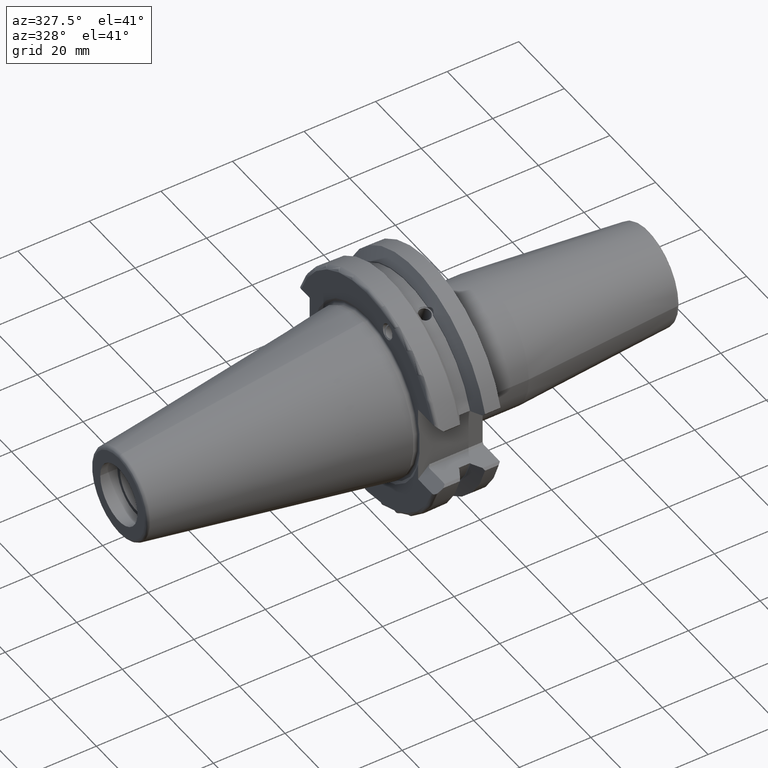
[diagram: clean part render]
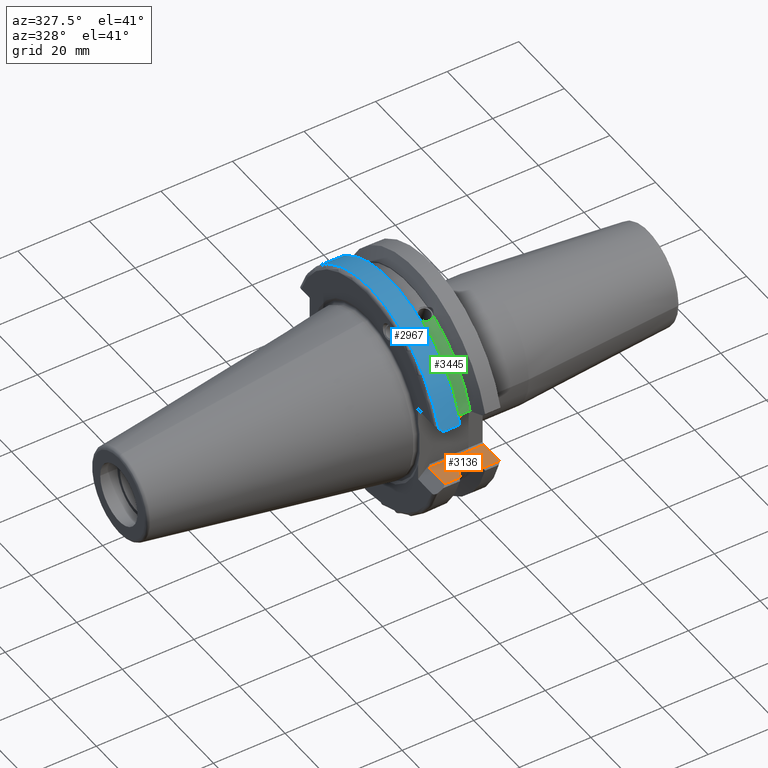
[diagram: same view with three faces highlighted in distinct colors, each labeled with its STEP entity id]
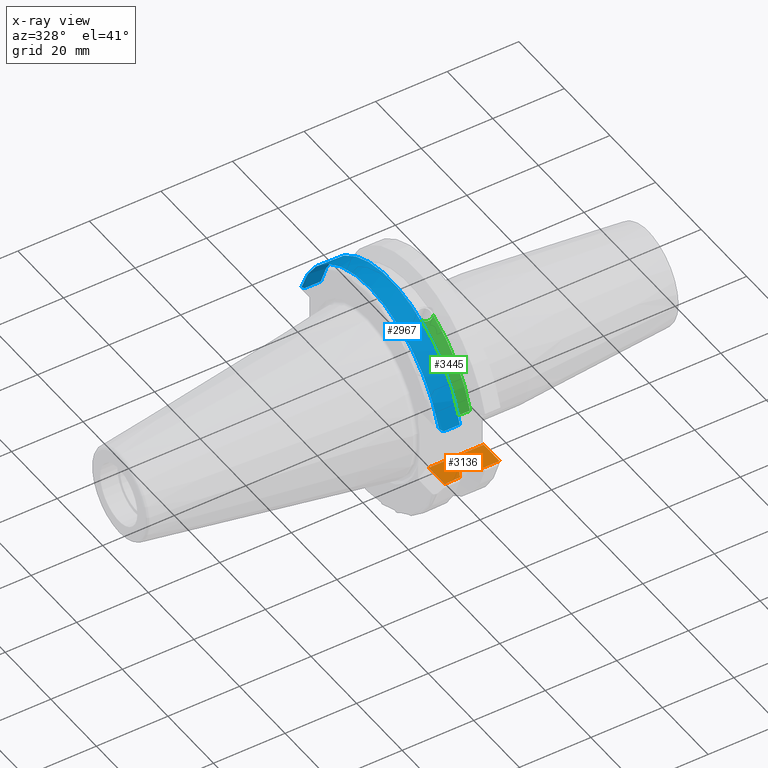
[diagram: x-ray of the same camera — body ghosted, the three highlighted faces saturated]
A machine part, auxiliary view with three faces highlighted in distinct colors.
The next image is the same camera in x-ray (body ghosted, the three faces saturated) — at least one of them is partly hidden behind the body in this view.
Their STEP definitions:

[orange] entity #3136 — the highlighted planar face has unit normal (0, 0, -1).
#281=DIRECTION('',(0.E0,1.E0,0.E0));
#282=VECTOR('',#281,6.917434933718E0);
#283=CARTESIAN_POINT('',(1.905E1,-3.001743493372E1,-8.19E0));
#284=LINE('',#283,#282);
#404=CARTESIAN_POINT('',(1.433535706711E1,-3.001743493372E1,-8.19E0));
#405=CARTESIAN_POINT('',(1.415629793946E1,-2.969595884884E1,-8.19E0));
#406=CARTESIAN_POINT('',(1.380177420519E1,-2.905874460031E1,-8.19E0));
#407=CARTESIAN_POINT('',(1.328084591441E1,-2.812019021653E1,-8.19E0));
#408=CARTESIAN_POINT('',(1.294074254485E1,-2.750584123433E1,-8.19E0));
#409=CARTESIAN_POINT('',(1.277249942683E1,-2.720151372390E1,-8.19E0));
#415=CARTESIAN_POINT('',(1.433535706711E1,-3.001743493372E1,-8.19E0));
#509=DIRECTION('',(0.E0,1.E0,1.319446061472E-14));
#510=VECTOR('',#509,2.692579698814E-1);
#511=CARTESIAN_POINT('',(1.277249942683E1,-2.720151372390E1,-8.19E0));
#512=LINE('',#511,#510);
#735=CARTESIAN_POINT('',(8.016642932888E0,-3.001743493372E1,-8.19E0));
#736=CARTESIAN_POINT('',(8.195702060541E0,-2.969595884884E1,-8.19E0));
#737=CARTESIAN_POINT('',(8.550225794812E0,-2.905874460031E1,-8.19E0));
#738=CARTESIAN_POINT('',(9.071154085594E0,-2.812019021653E1,-8.19E0));
#739=CARTESIAN_POINT('',(9.411257455155E0,-2.750584123433E1,-8.19E0));
#740=CARTESIAN_POINT('',(9.579500573173E0,-2.720151372390E1,-8.19E0));
#812=DIRECTION('',(0.E0,1.E0,1.319446061472E-14));
#813=VECTOR('',#812,2.692579698814E-1);
#814=CARTESIAN_POINT('',(9.579500573173E0,-2.720151372390E1,-8.19E0));
#815=LINE('',#814,#813);
#828=DIRECTION('',(-1.E0,0.E0,0.E0));
#829=VECTOR('',#828,1.535E1);
#830=CARTESIAN_POINT('',(1.905E1,-2.31E1,-8.19E0));
#831=LINE('',#830,#829);
#832=DIRECTION('',(-1.E0,0.E0,0.E0));
#833=VECTOR('',#832,4.714642932888E0);
#834=CARTESIAN_POINT('',(1.905E1,-3.001743493372E1,-8.19E0));
#835=LINE('',#834,#833);
#836=DIRECTION('',(-1.E0,0.E0,0.E0));
#837=VECTOR('',#836,4.316642932888E0);
#838=CARTESIAN_POINT('',(8.016642932888E0,-3.001743493372E1,-8.19E0));
#839=LINE('',#838,#837);
#840=DIRECTION('',(0.E0,1.E0,0.E0));
#841=VECTOR('',#840,6.917434933718E0);
#842=CARTESIAN_POINT('',(3.7E0,-3.001743493372E1,-8.19E0));
#843=LINE('',#842,#841);
#1086=DIRECTION('',(1.E0,0.E0,0.E0));
#1087=VECTOR('',#1086,3.192998853654E0);
#1088=CARTESIAN_POINT('',(9.579500573173E0,-2.693225575402E1,-8.19E0));
#1089=LINE('',#1088,#1087);
#1783=CARTESIAN_POINT('',(9.579500573173E0,-2.693225575402E1,-8.19E0));
#1784=CARTESIAN_POINT('',(1.277249942683E1,-2.693225575402E1,-8.19E0));
#1785=VERTEX_POINT('',#1783);
#1786=VERTEX_POINT('',#1784);
#1791=CARTESIAN_POINT('',(1.277249942683E1,-2.720151372390E1,-8.19E0));
#1792=VERTEX_POINT('',#1791);
#1795=CARTESIAN_POINT('',(9.579500573173E0,-2.720151372390E1,-8.19E0));
#1796=VERTEX_POINT('',#1795);
#1893=VERTEX_POINT('',#415);
#1894=CARTESIAN_POINT('',(1.905E1,-3.001743493372E1,-8.19E0));
#1895=VERTEX_POINT('',#1894);
#1899=CARTESIAN_POINT('',(3.7E0,-3.001743493372E1,-8.19E0));
#1901=VERTEX_POINT('',#1899);
#1902=CARTESIAN_POINT('',(8.016642932888E0,-3.001743493372E1,-8.19E0));
#1903=VERTEX_POINT('',#1902);
#1925=CARTESIAN_POINT('',(1.905E1,-2.31E1,-8.19E0));
#1926=CARTESIAN_POINT('',(3.7E0,-2.31E1,-8.19E0));
#1927=VERTEX_POINT('',#1925);
#1928=VERTEX_POINT('',#1926);
#3114=CARTESIAN_POINT('',(0.E0,-2.26E1,-8.19E0));
#3115=DIRECTION('',(0.E0,0.E0,-1.E0));
#3116=DIRECTION('',(1.E0,0.E0,0.E0));
#3117=AXIS2_PLACEMENT_3D('',#3114,#3115,#3116);
#3118=PLANE('',#3117);
#3120=ORIENTED_EDGE('',*,*,#3119,.F.);
#3121=ORIENTED_EDGE('',*,*,#2521,.F.);
#3123=ORIENTED_EDGE('',*,*,#3122,.T.);
#3124=ORIENTED_EDGE('',*,*,#2689,.T.);
#3125=ORIENTED_EDGE('',*,*,#2771,.T.);
#3127=ORIENTED_EDGE('',*,*,#3126,.F.);
#3128=ORIENTED_EDGE('',*,*,#3065,.F.);
#3129=ORIENTED_EDGE('',*,*,#3008,.F.);
#3131=ORIENTED_EDGE('',*,*,#3130,.T.);
#3133=ORIENTED_EDGE('',*,*,#3132,.T.);
#3134=EDGE_LOOP('',(#3120,#3121,#3123,#3124,#3125,#3127,#3128,#3129,#3131,
#3133));
#3135=FACE_OUTER_BOUND('',#3134,.F.);
#3136=ADVANCED_FACE('',(#3135),#3118,.F.);
#410=B_SPLINE_CURVE_WITH_KNOTS('',3,(#404,#405,#406,#407,#408,#409),
.UNSPECIFIED.,.F.,.F.,(4,1,1,4),(0.E0,3.333333333333E-1,6.666666666667E-1,1.E0),
.UNSPECIFIED.);
#741=B_SPLINE_CURVE_WITH_KNOTS('',3,(#735,#736,#737,#738,#739,#740),
.UNSPECIFIED.,.F.,.F.,(4,1,1,4),(0.E0,3.333333333333E-1,6.666666666667E-1,1.E0),
.UNSPECIFIED.);
#2521=EDGE_CURVE('',#1895,#1927,#284,.T.);
#2689=EDGE_CURVE('',#1893,#1792,#410,.T.);
#2771=EDGE_CURVE('',#1792,#1786,#512,.T.);
#3008=EDGE_CURVE('',#1903,#1796,#741,.T.);
#3065=EDGE_CURVE('',#1796,#1785,#815,.T.);
#3119=EDGE_CURVE('',#1927,#1928,#831,.T.);
#3122=EDGE_CURVE('',#1895,#1893,#835,.T.);
#3126=EDGE_CURVE('',#1785,#1786,#1089,.T.);
#3130=EDGE_CURVE('',#1903,#1901,#839,.T.);
#3132=EDGE_CURVE('',#1901,#1928,#843,.T.);

[blue] entity #2967 — the highlighted cylindrical surface (partial cylindrical patch) has radius 31.75 mm, axis along (1, 0, 0).
#663=DIRECTION('',(-1.E0,0.E0,0.E0));
#664=VECTOR('',#663,4.588873230924E0);
#665=CARTESIAN_POINT('',(7.649833230924E0,3.049771389266E1,8.82904E0));
#666=LINE('',#665,#664);
#667=DIRECTION('',(1.E0,0.E0,0.E0));
#668=VECTOR('',#667,4.588873230924E0);
#669=CARTESIAN_POINT('',(3.06096E0,-3.049771389266E1,8.82904E0));
#670=LINE('',#669,#668);
#671=CARTESIAN_POINT('',(2.E0,-3.017035631212E1,9.89E0));
#672=CARTESIAN_POINT('',(2.352653116158E0,-3.028595784107E1,9.537346883842E0));
#673=CARTESIAN_POINT('',(2.706311587220E0,-3.039504373733E1,9.183688412780E0));
#674=CARTESIAN_POINT('',(3.06096E0,-3.049771389266E1,8.82904E0));
#676=CARTESIAN_POINT('',(3.06096E0,3.049771389266E1,8.82904E0));
#677=CARTESIAN_POINT('',(2.706311587220E0,3.039504373733E1,9.183688412780E0));
#678=CARTESIAN_POINT('',(2.352653116158E0,3.028595784107E1,9.537346883842E0));
#679=CARTESIAN_POINT('',(2.E0,3.017035631212E1,9.89E0));
#771=CARTESIAN_POINT('',(7.649833230924E0,-3.049771389266E1,8.82904E0));
#777=CARTESIAN_POINT('',(7.649833230924E0,0.E0,0.E0));
#778=DIRECTION('',(-1.E0,0.E0,0.E0));
#779=DIRECTION('',(0.E0,-9.605579178790E-1,2.7808E-1));
#780=AXIS2_PLACEMENT_3D('',#777,#778,#779);
#786=CARTESIAN_POINT('',(7.649833230924E0,3.049771389266E1,8.82904E0));
#997=CARTESIAN_POINT('',(2.E0,-3.017035631212E1,9.89E0));
#1416=CARTESIAN_POINT('',(2.E0,0.E0,0.E0));
#1417=DIRECTION('',(1.E0,0.E0,0.E0));
#1418=DIRECTION('',(0.E0,9.502474429013E-1,3.114960629921E-1));
#1419=AXIS2_PLACEMENT_3D('',#1416,#1417,#1418);
#1442=CARTESIAN_POINT('',(2.E0,3.017035631212E1,9.89E0));
#1849=VERTEX_POINT('',#997);
#1852=VERTEX_POINT('',#1442);
#1866=CARTESIAN_POINT('',(3.06096E0,3.049771389266E1,8.82904E0));
#1868=VERTEX_POINT('',#1866);
#1872=VERTEX_POINT('',#786);
#1879=VERTEX_POINT('',#771);
#1883=CARTESIAN_POINT('',(3.06096E0,-3.049771389266E1,8.82904E0));
#1884=VERTEX_POINT('',#1883);
#2948=CARTESIAN_POINT('',(9.75E-2,0.E0,0.E0));
#2949=DIRECTION('',(1.E0,0.E0,0.E0));
#2950=DIRECTION('',(0.E0,0.E0,1.E0));
#2951=AXIS2_PLACEMENT_3D('',#2948,#2949,#2950);
#2952=CYLINDRICAL_SURFACE('',#2951,3.175E1);
#2954=ORIENTED_EDGE('',*,*,#2953,.F.);
#2956=ORIENTED_EDGE('',*,*,#2955,.F.);
#2958=ORIENTED_EDGE('',*,*,#2957,.F.);
#2960=ORIENTED_EDGE('',*,*,#2959,.F.);
#2962=ORIENTED_EDGE('',*,*,#2961,.F.);
#2964=ORIENTED_EDGE('',*,*,#2963,.F.);
#2965=EDGE_LOOP('',(#2954,#2956,#2958,#2960,#2962,#2964));
#2966=FACE_OUTER_BOUND('',#2965,.F.);
#2967=ADVANCED_FACE('',(#2966),#2952,.T.);
#675=B_SPLINE_CURVE_WITH_KNOTS('',3,(#671,#672,#673,#674),.UNSPECIFIED.,.F.,.F.,
(4,4),(0.E0,1.E0),.UNSPECIFIED.);
#680=B_SPLINE_CURVE_WITH_KNOTS('',3,(#676,#677,#678,#679),.UNSPECIFIED.,.F.,.F.,
(4,4),(0.E0,1.E0),.UNSPECIFIED.);
#781=CIRCLE('',#780,3.175E1);
#1420=CIRCLE('',#1419,3.175E1);
#2953=EDGE_CURVE('',#1872,#1868,#666,.T.);
#2955=EDGE_CURVE('',#1879,#1872,#781,.T.);
#2957=EDGE_CURVE('',#1884,#1879,#670,.T.);
#2959=EDGE_CURVE('',#1849,#1884,#675,.T.);
#2961=EDGE_CURVE('',#1852,#1849,#1420,.T.);
#2963=EDGE_CURVE('',#1868,#1852,#680,.T.);

[green] entity #3445 — the highlighted cylindrical surface (partial cylindrical patch) has radius 28.15 mm, axis along (1, 0, 0).
#1095=CARTESIAN_POINT('',(1.277249942683E1,-1.075105089807E1,2.601609895021E1));
#1096=CARTESIAN_POINT('',(1.267753118192E1,-1.086747607678E1,2.596798670154E1));
#1097=CARTESIAN_POINT('',(1.246473067821E1,-1.107229769744E1,2.588156683283E1));
#1098=CARTESIAN_POINT('',(1.207243200834E1,-1.130709044843E1,2.577957209158E1));
#1099=CARTESIAN_POINT('',(1.163669571967E1,-1.144998745177E1,2.571620679446E1));
#1100=CARTESIAN_POINT('',(1.133267839146E1,-1.148292170074E1,2.570145928181E1));
#1101=CARTESIAN_POINT('',(1.1176E1,-1.148292170074E1,2.570145928181E1));
#1103=CARTESIAN_POINT('',(1.277249942683E1,0.E0,0.E0));
#1104=DIRECTION('',(1.E0,0.E0,0.E0));
#1105=DIRECTION('',(0.E0,-3.819201029509E-1,9.241953445901E-1));
#1106=AXIS2_PLACEMENT_3D('',#1103,#1104,#1105);
#1108=DIRECTION('',(1.E0,0.E0,0.E0));
#1109=VECTOR('',#1108,3.192998853654E0);
#1110=CARTESIAN_POINT('',(9.579500573173E0,-2.693225575402E1,8.19E0));
#1111=LINE('',#1110,#1109);
#1112=CARTESIAN_POINT('',(9.579500573173E0,0.E0,0.E0));
#1113=DIRECTION('',(-1.E0,0.E0,0.E0));
#1114=DIRECTION('',(0.E0,-9.567408793613E-1,2.909413854352E-1));
#1115=AXIS2_PLACEMENT_3D('',#1112,#1113,#1114);
#1117=CARTESIAN_POINT('',(1.1176E1,-1.148292170074E1,2.570145928181E1));
#1118=CARTESIAN_POINT('',(1.102109213410E1,-1.148292170074E1,2.570145928181E1));
#1119=CARTESIAN_POINT('',(1.071913998923E1,-1.145078781552E1,2.571584769904E1));
#1120=CARTESIAN_POINT('',(1.028040786199E1,-1.130791771167E1,2.577921592018E1));
#1121=CARTESIAN_POINT('',(9.884051671500E0,-1.106999956619E1,2.588255743367E1));
#1122=CARTESIAN_POINT('',(9.673381211933E0,-1.086614273909E1,2.596853769811E1));
#1123=CARTESIAN_POINT('',(9.579500573173E0,-1.075105089807E1,2.601609895021E1));
#1787=CARTESIAN_POINT('',(9.579500573173E0,-2.693225575402E1,8.19E0));
#1788=CARTESIAN_POINT('',(1.277249942683E1,-2.693225575402E1,8.19E0));
#1789=VERTEX_POINT('',#1787);
#1790=VERTEX_POINT('',#1788);
#1997=CARTESIAN_POINT('',(1.1176E1,-1.148292170074E1,2.570145928181E1));
#1998=VERTEX_POINT('',#1997);
#2011=VERTEX_POINT('',#1095);
#2014=VERTEX_POINT('',#1123);
#3431=CARTESIAN_POINT('',(-7.351083384538E-1,0.E0,0.E0));
#3432=DIRECTION('',(1.E0,0.E0,0.E0));
#3433=DIRECTION('',(0.E0,0.E0,1.E0));
#3434=AXIS2_PLACEMENT_3D('',#3431,#3432,#3433);
#3435=CYLINDRICAL_SURFACE('',#3434,2.815E1);
#3437=ORIENTED_EDGE('',*,*,#3436,.F.);
#3438=ORIENTED_EDGE('',*,*,#2787,.T.);
#3439=ORIENTED_EDGE('',*,*,#3371,.F.);
#3440=ORIENTED_EDGE('',*,*,#3106,.T.);
#3442=ORIENTED_EDGE('',*,*,#3441,.F.);
#3443=EDGE_LOOP('',(#3437,#3438,#3439,#3440,#3442));
#3444=FACE_OUTER_BOUND('',#3443,.F.);
#3445=ADVANCED_FACE('',(#3444),#3435,.T.);
#1102=B_SPLINE_CURVE_WITH_KNOTS('',3,(#1095,#1096,#1097,#1098,#1099,#1100,
#1101),.UNSPECIFIED.,.F.,.F.,(4,1,1,1,4),(0.E0,2.5E-1,5.E-1,7.5E-1,1.E0),
.UNSPECIFIED.);
#1107=CIRCLE('',#1106,2.815E1);
#1116=CIRCLE('',#1115,2.815E1);
#1124=B_SPLINE_CURVE_WITH_KNOTS('',3,(#1117,#1118,#1119,#1120,#1121,#1122,
#1123),.UNSPECIFIED.,.F.,.F.,(4,1,1,1,4),(0.E0,2.5E-1,5.E-1,7.5E-1,1.E0),
.UNSPECIFIED.);
#2787=EDGE_CURVE('',#2011,#1790,#1107,.T.);
#3106=EDGE_CURVE('',#1789,#2014,#1116,.T.);
#3371=EDGE_CURVE('',#1789,#1790,#1111,.T.);
#3436=EDGE_CURVE('',#2011,#1998,#1102,.T.);
#3441=EDGE_CURVE('',#1998,#2014,#1124,.T.);